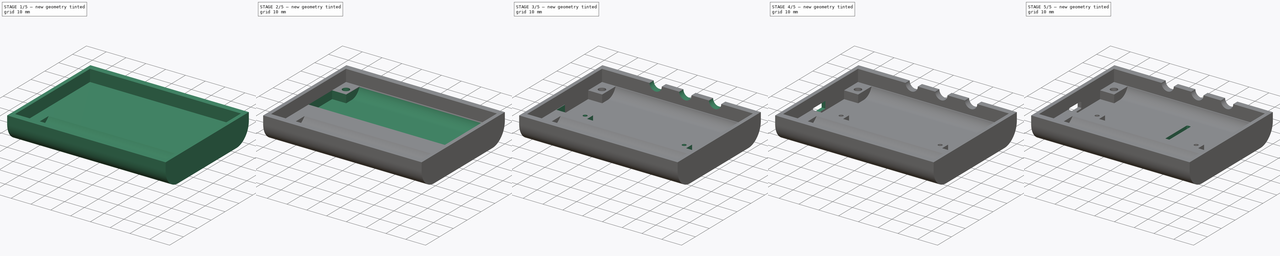
[diagram: build sequence overview — one tinted view per stage of 5, left to right]
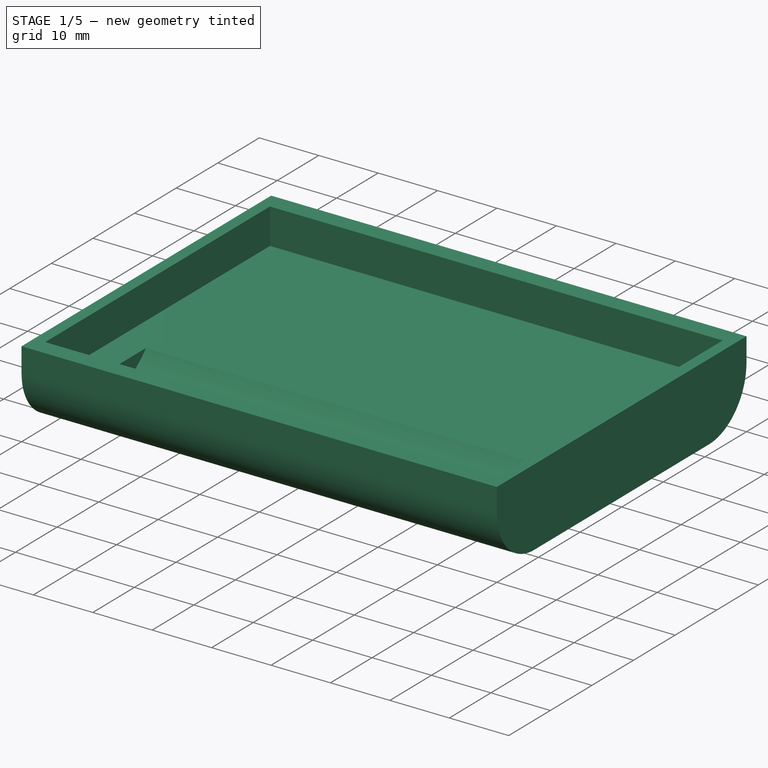
[diagram: stage 1 of 5 — iso view after this stage's code; geometry added in this stage tinted green]
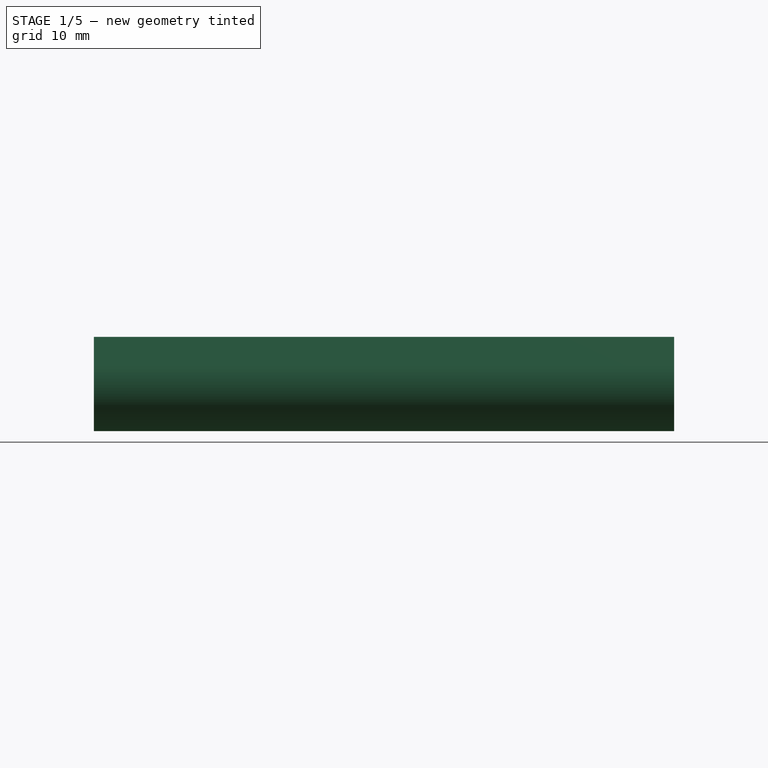
[diagram: stage 1 of 5 — front view after this stage's code; geometry added in this stage tinted green]
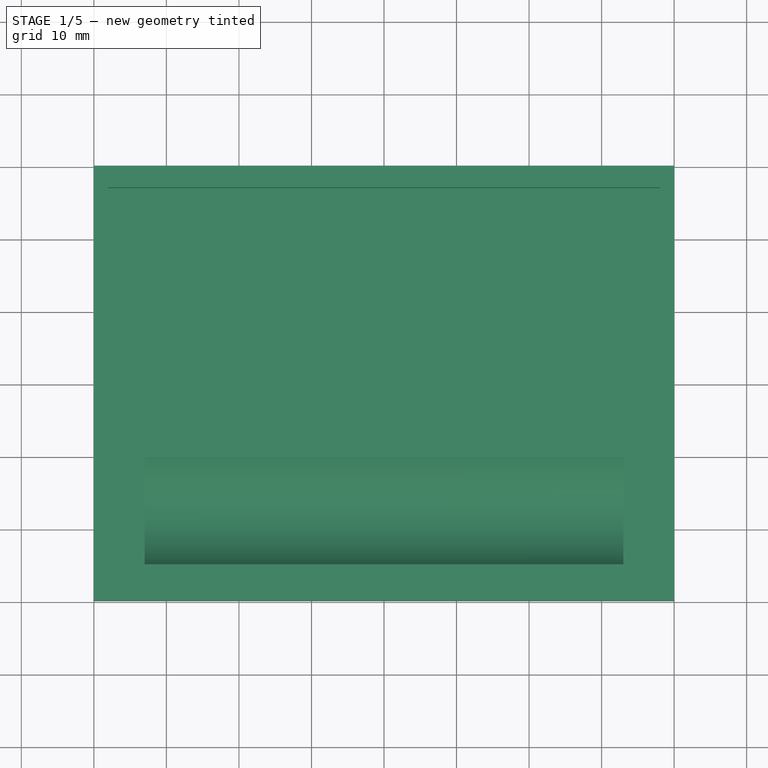
[diagram: stage 1 of 5 — top view after this stage's code; geometry added in this stage tinted green]
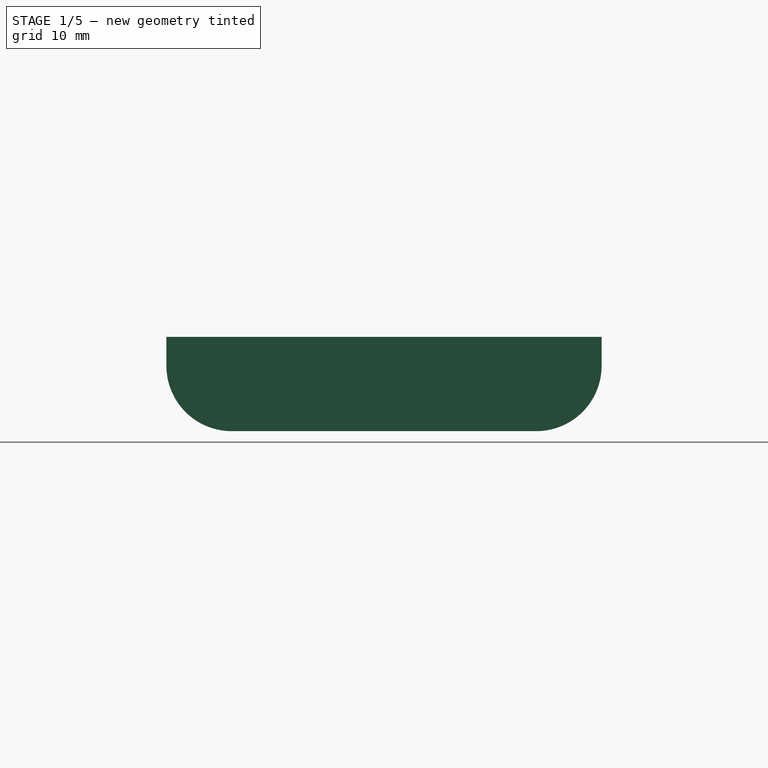
[diagram: stage 1 of 5 — right view after this stage's code; geometry added in this stage tinted green]
FCSTD DOCUMENT  (FreeCAD 0.20R29603 (Git))
Label: OBUDOWA_DOLLL
License: All rights reserved
LicenseURL: http://en.wikipedia.org/wiki/All_rights_reserved
objects: Sketcher::SketchObject×14, PartDesign::Pocket×12, PartDesign::Fillet×2, PartDesign::Pad×1, PartDesign::Body×1
note: 45 computed .brp shape members not serialized (recipe doc carries the construction recipe); baked Part::Feature solids carry a one-line shape summary decoded from their .brp

FEATURE [Sketcher::SketchObject] Sketch
  FullyConstrained = true
  MapMode = 5
  Placement = pos=(0,0,0) rot=(0.57735,0.57735,0.57735;2.0944rad)
  Support = -> [YZ_Plane]
  sketch-geometry (6):
    g0: LineSegment StartX=1.07e-14 StartY=0 StartZ=0 EndX=60 EndY=0 EndZ=0
    g1: LineSegment StartX=60 StartY=0 StartZ=0 EndX=60 EndY=-4 EndZ=0
    g2: LineSegment StartX=51 StartY=-13 StartZ=0 EndX=9 EndY=-13 EndZ=0
    g3: LineSegment StartX=1.07e-14 StartY=-4 StartZ=0 EndX=1.07e-14 EndY=0 EndZ=0
    g4: ArcOfCircle CenterX=51 CenterY=-4 CenterZ=0 NormalX=0 NormalY=0 NormalZ=1 AngleXU=0 Radius=9 StartAngle=4.71239 EndAngle=6.28319
    g5: ArcOfCircle CenterX=9 CenterY=-4 CenterZ=0 NormalX=0 NormalY=0 NormalZ=1 AngleXU=0 Radius=9 StartAngle=3.14159 EndAngle=4.71239
  constraints (15):
    c: Coincident(g0,g1)
    c: Coincident(g3,g0)
    c: Horizontal(g0)
    c: Horizontal(g2)
    c: Vertical(g1)
    c: Vertical(g3)
    c: Coincident(g0,g-1)
    c: DistanceX(g0,g0) = 60
    c: Tangent(g1,g4) = 1.5708
    c: Tangent(g2,g4) = 1.5708
    c: Tangent(g2,g5) = 1.5708
    c: Tangent(g3,g5) = 1.5708
    c: DistanceY(g3,g3) = 4
    c: DistanceY(g1,g1) = 4
    c: Radius(g4) = 9
FEATURE [PartDesign::Pad] Pad
  Direction = (1,-2e-16,3e-16)
  Length = 80
  Length2 = 10
  Placement = pos=(0,0,0) rot=(0.57735,0.57735,0.57735;2.0944rad)
  Profile = -> Sketch
  ReferenceAxis = -> Sketch [N_Axis]
  Type = 0
FEATURE [Sketcher::SketchObject] Sketch001
  FullyConstrained = true
  MapMode = 5
  Placement = pos=(80,-1.76e-14,1.76e-14) rot=(0.57735,0.57735,0.57735;2.0944rad)
  Support = -> [Pad]
  sketch-geometry (1):
    g0: Circle CenterX=12.5 CenterY=0 CenterZ=0 NormalX=0 NormalY=0 NormalZ=1 AngleXU=0 Radius=9.5
  constraints (3):
    c: PointOnObject(g0,g-1)
    c: Diameter(g0) = 19
    c: DistanceX(g-1,g0) = 12.5
FEATURE [PartDesign::Pocket] Pocket
  BaseFeature = -> Pad
  Direction = (-1,4e-16,-4e-16)
  Length = 73
  Length2 = -7
  Placement = pos=(0,0,0) rot=(0.57735,0.57735,0.57735;2.0944rad)
  Profile = -> Sketch001
  ReferenceAxis = -> Sketch001 [N_Axis]
  Type = 4
FEATURE [Sketcher::SketchObject] Sketch002
  ExternalGeometry = -> [Pocket]
  FullyConstrained = true
  MapMode = 5
  Placement = pos=(0,0,0) rot=(0,0,-1;1.5708rad)
  Support = -> [Pocket]
  sketch-geometry (4):
    g0: LineSegment StartX=-3 StartY=78.1 StartZ=0 EndX=-57 EndY=78.1 EndZ=0
    g1: LineSegment StartX=-57 StartY=78.1 StartZ=0 EndX=-57 EndY=1.9 EndZ=0
    g2: LineSegment StartX=-57 StartY=1.9 StartZ=0 EndX=-3 EndY=1.9 EndZ=0
    g3: LineSegment StartX=-3 StartY=1.9 StartZ=0 EndX=-3 EndY=78.1 EndZ=0
  constraints (12):
    c: Coincident(g0,g1)
    c: Coincident(g1,g2)
    c: Coincident(g2,g3)
    c: Coincident(g3,g0)
    c: Horizontal(g0)
    c: Horizontal(g2)
    c: Vertical(g1)
    c: Vertical(g3)
    c: DistanceX(g-4,g0) = 3
    c: DistanceY(g0,g-4) = 1.9
    c: DistanceY(g-5,g2) = 1.9
    c: DistanceX(g2,g-5) = 3
FEATURE [PartDesign::Pocket] Pocket001
  BaseFeature = -> Pocket
  Direction = (7e-16,-7e-16,-1)
  Length = 6
  Length2 = 5
  Placement = pos=(0,0,0) rot=(0.57735,0.57735,0.57735;2.0944rad)
  Profile = -> Sketch002
  ReferenceAxis = -> Sketch002 [N_Axis]
  Type = 0
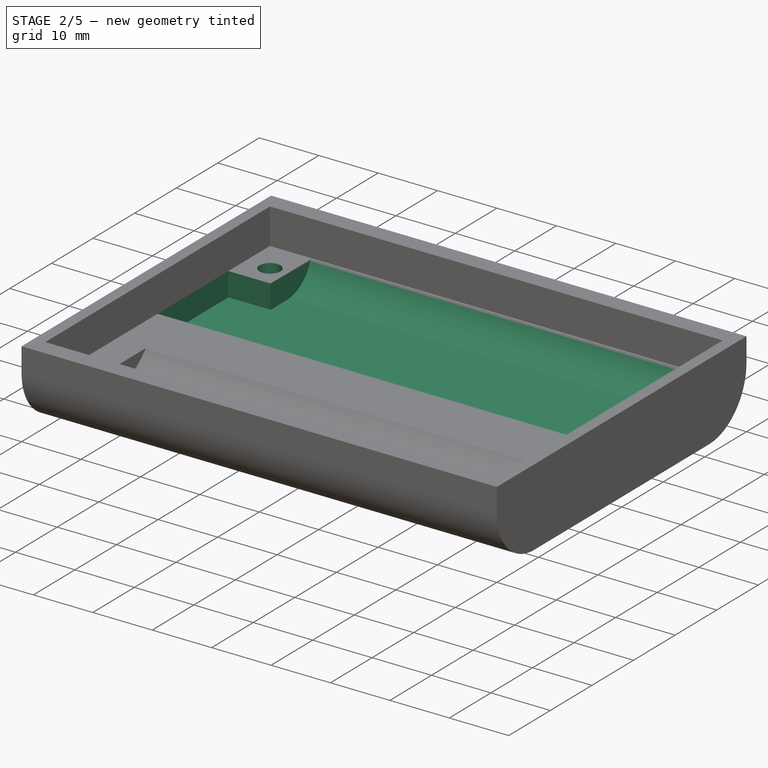
[diagram: stage 2 of 5 — iso view after this stage's code; geometry added in this stage tinted green]
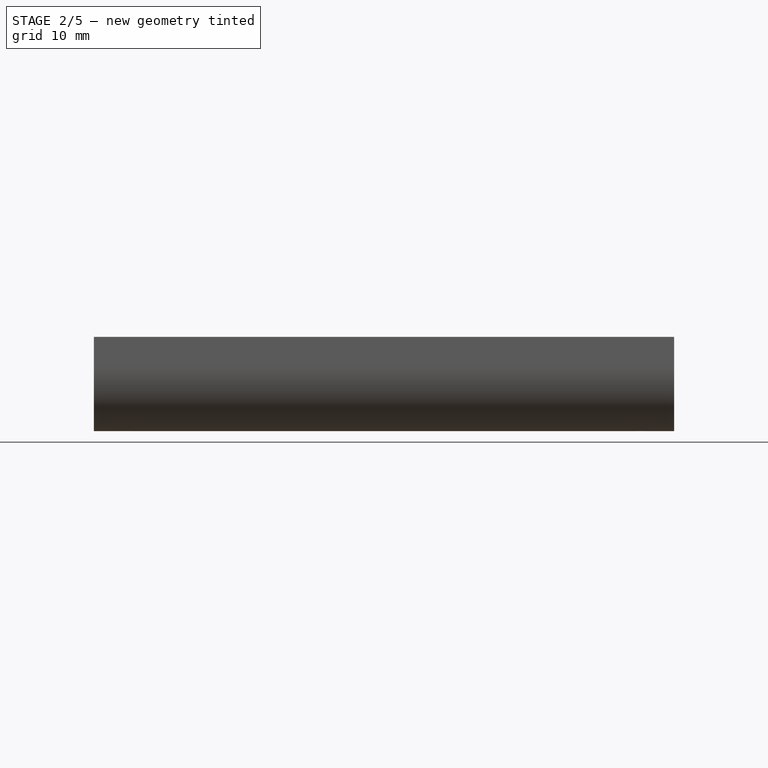
[diagram: stage 2 of 5 — front view after this stage's code; geometry added in this stage tinted green]
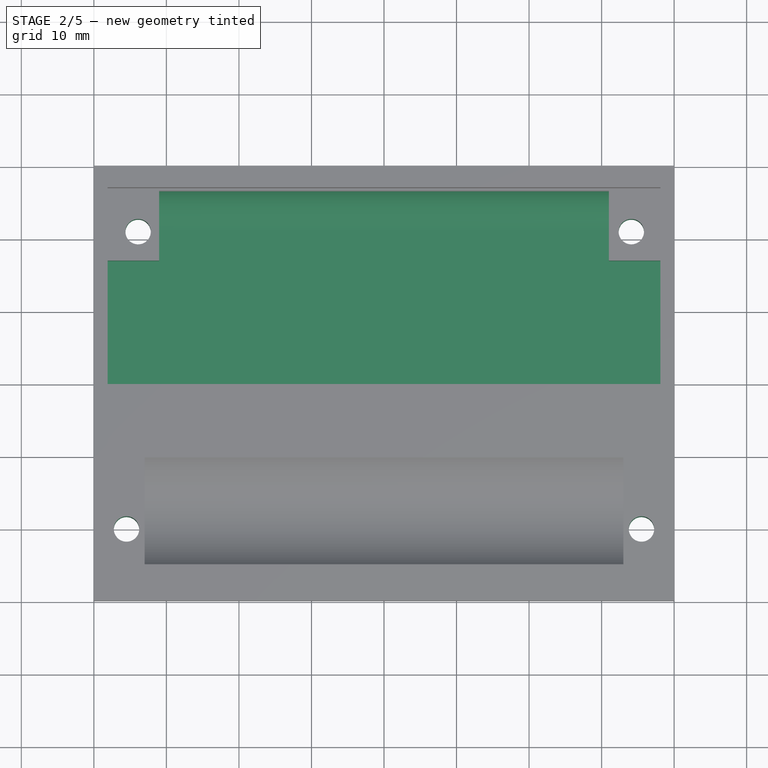
[diagram: stage 2 of 5 — top view after this stage's code; geometry added in this stage tinted green]
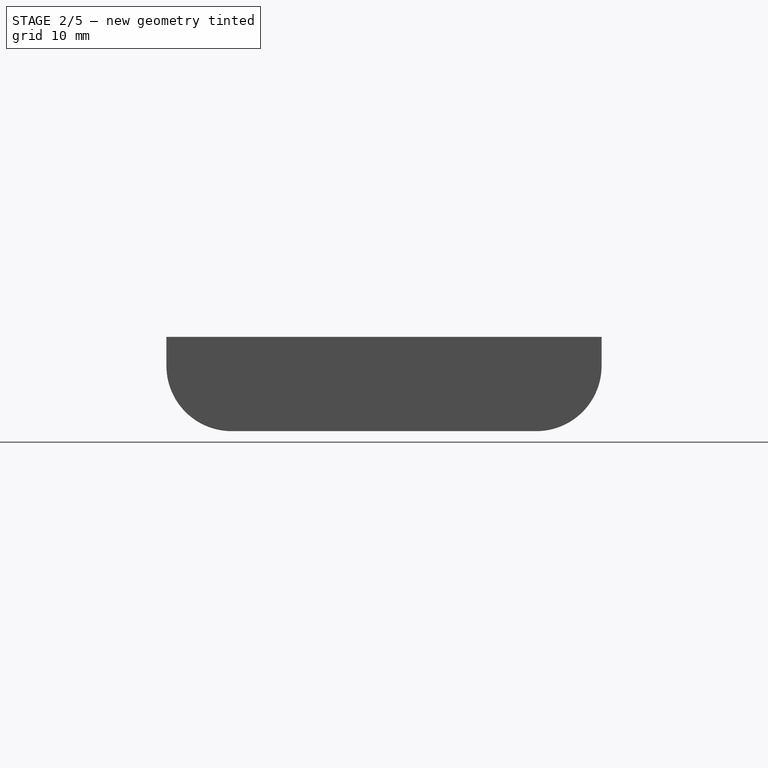
[diagram: stage 2 of 5 — right view after this stage's code; geometry added in this stage tinted green]
FEATURE [Sketcher::SketchObject] Sketch003
  ExternalGeometry = -> [Pocket001]
  FullyConstrained = true
  MapMode = 5
  Placement = pos=(80,-1.76e-14,1.76e-14) rot=(0.57735,0.57735,0.57735;2.0944rad)
  Support = -> [Pocket001]
  sketch-geometry (5):
    g0: LineSegment StartX=57 StartY=4.4e-15 StartZ=0 EndX=32 EndY=4.4e-15 EndZ=0
    g1: LineSegment StartX=32 StartY=4.4e-15 StartZ=0 EndX=32 EndY=-10 EndZ=0
    g2: LineSegment StartX=32 StartY=-10 StartZ=0 EndX=51 EndY=-10 EndZ=0
    g3: LineSegment StartX=57 StartY=-4 StartZ=0 EndX=57 EndY=4.4e-15 EndZ=0
    g4: ArcOfCircle CenterX=51 CenterY=-4 CenterZ=0 NormalX=0 NormalY=0 NormalZ=1 AngleXU=0 Radius=6 StartAngle=4.71239 EndAngle=6.28319
  constraints (14):
    c: Coincident(g0,g1)
    c: Coincident(g1,g2)
    c: Coincident(g3,g0)
    c: Horizontal(g0)
    c: Horizontal(g2)
    c: Vertical(g1)
    c: Vertical(g3)
    c: PointOnObject(g0,g-4)
    c: DistanceX(g0,g-4) = 3
    c: DistanceY(g-5,g1) = 3
    c: Tangent(g3,g4) = -1.5708
    c: Tangent(g2,g4) = -1.5708
    c: Radius(g4) = 6
    c: DistanceX(g0,g0) = 25
FEATURE [PartDesign::Pocket] Pocket002
  BaseFeature = -> Pocket001
  Direction = (-1,8e-16,-6e-16)
  Length = 71
  Length2 = -9
  Placement = pos=(0,0,0) rot=(0.57735,0.57735,0.57735;2.0944rad)
  Profile = -> Sketch003
  ReferenceAxis = -> Sketch003 [N_Axis]
  Type = 4
FEATURE [Sketcher::SketchObject] Sketch005
  ExternalGeometry = -> [Pocket002]
  FullyConstrained = true
  MapMode = 5
  Placement = pos=(80,-1.76e-14,1.76e-14) rot=(0.57735,0.57735,0.57735;2.0944rad)
  Support = -> [Pocket002]
  sketch-geometry (4):
    g0: LineSegment StartX=47 StartY=-4 StartZ=0 EndX=30 EndY=-4 EndZ=0
    g1: LineSegment StartX=30 StartY=-4 StartZ=0 EndX=30 EndY=-10 EndZ=0
    g2: LineSegment StartX=30 StartY=-10 StartZ=0 EndX=47 EndY=-10 EndZ=0
    g3: LineSegment StartX=47 StartY=-10 StartZ=0 EndX=47 EndY=-4 EndZ=0
  constraints (12):
    c: Coincident(g0,g1)
    c: Coincident(g1,g2)
    c: Coincident(g2,g3)
    c: Coincident(g3,g0)
    c: Horizontal(g0)
    c: Horizontal(g2)
    c: Vertical(g1)
    c: Vertical(g3)
    c: DistanceY(g-4,g1) = 3
    c: DistanceX(g0,g-3) = 13
    c: DistanceX(g0,g0) = 17
    c: DistanceY(g3,g3) = 6
FEATURE [PartDesign::Pocket] Pocket003
  BaseFeature = -> Pocket002
  Direction = (-1,1.1e-15,-7e-16)
  Length = 78.1
  Length2 = -1.9
  Placement = pos=(0,0,0) rot=(0.57735,0.57735,0.57735;2.0944rad)
  Profile = -> Sketch005
  ReferenceAxis = -> Sketch005 [N_Axis]
  Type = 4
FEATURE [Sketcher::SketchObject] Sketch006
  ExternalGeometry = -> [Pocket003]
  FullyConstrained = true
  MapMode = 5
  Placement = pos=(4.3e-15,-4e-15,-6) rot=(0,0,-1;1.5708rad)
  Support = -> [Pocket003]
  sketch-geometry (4):
    g0: Circle CenterX=-51 CenterY=74.1 CenterZ=0 NormalX=0 NormalY=0 NormalZ=1 AngleXU=0 Radius=1.75
    g1: Circle CenterX=-51 CenterY=6.1 CenterZ=0 NormalX=0 NormalY=0 NormalZ=1 AngleXU=0 Radius=1.75
    g2: Circle CenterX=-10 CenterY=4.5 CenterZ=0 NormalX=0 NormalY=0 NormalZ=1 AngleXU=0 Radius=1.75
    g3: Circle CenterX=-10 CenterY=75.5 CenterZ=0 NormalX=0 NormalY=0 NormalZ=1 AngleXU=0 Radius=1.75
  constraints (12):
    c: Diameter(g0) = 3.5
    c: Diameter(g3) = 3.5
    c: Diameter(g2) = 3.5
    c: Diameter(g1) = 3.5
    c: DistanceX(g-4,g0) = 9
    c: DistanceY(g0,g-4) = 5.9
    c: DistanceY(g1,g0) = 68
    c: DistanceX(g-4,g1) = 9
    c: DistanceX(g2,g-1) = 10
    c: DistanceX(g3,g-3) = 10
    c: DistanceY(g3,g-3) = 4.5
    c: DistanceY(g-1,g2) = 4.5
FEATURE [PartDesign::Pocket] Pocket004  label="otwory_srobki"
  BaseFeature = -> Pocket003
  Direction = (1.7e-15,-1e-15,-1)
  Length = 5
  Length2 = 5
  Placement = pos=(0,0,0) rot=(0.57735,0.57735,0.57735;2.0944rad)
  Profile = -> Sketch006
  ReferenceAxis = -> Sketch006 [N_Axis]
  Type = 1
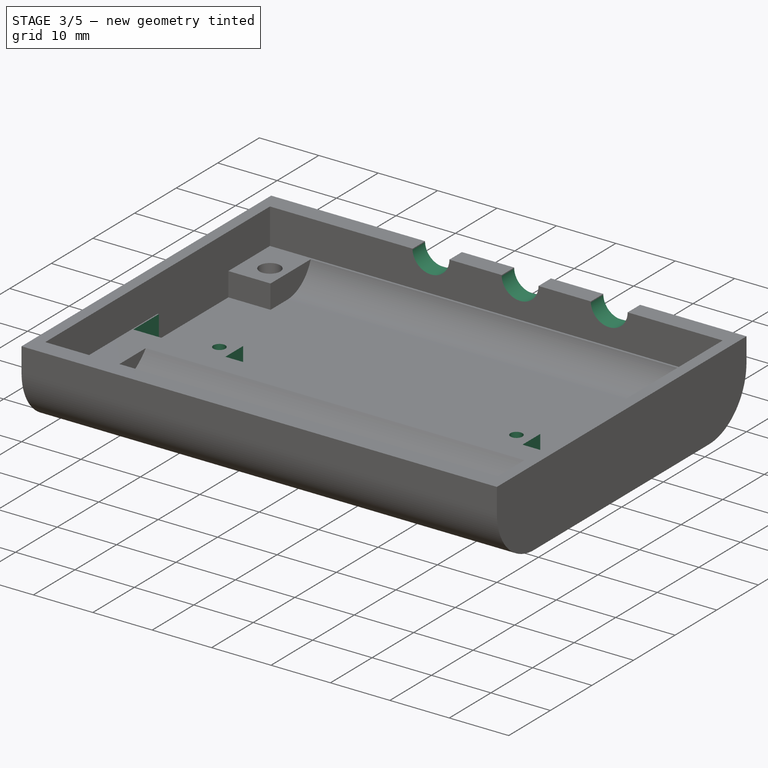
[diagram: stage 3 of 5 — iso view after this stage's code; geometry added in this stage tinted green]
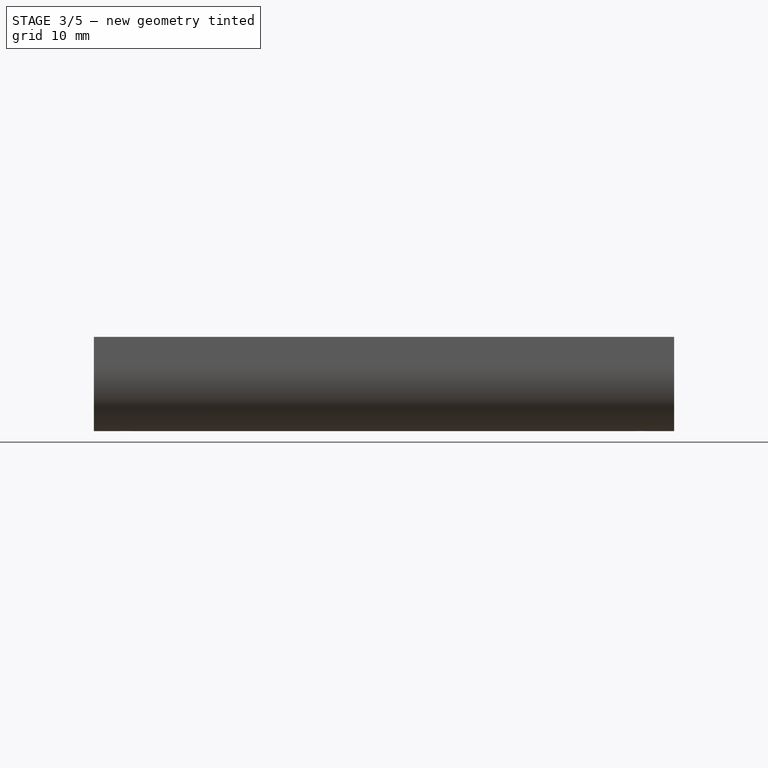
[diagram: stage 3 of 5 — front view after this stage's code; geometry added in this stage tinted green]
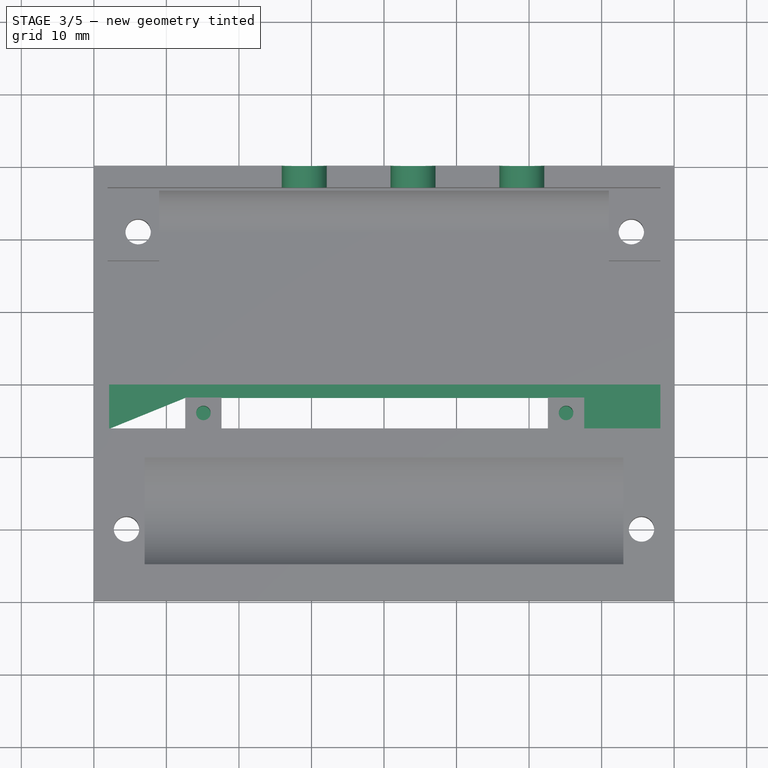
[diagram: stage 3 of 5 — top view after this stage's code; geometry added in this stage tinted green]
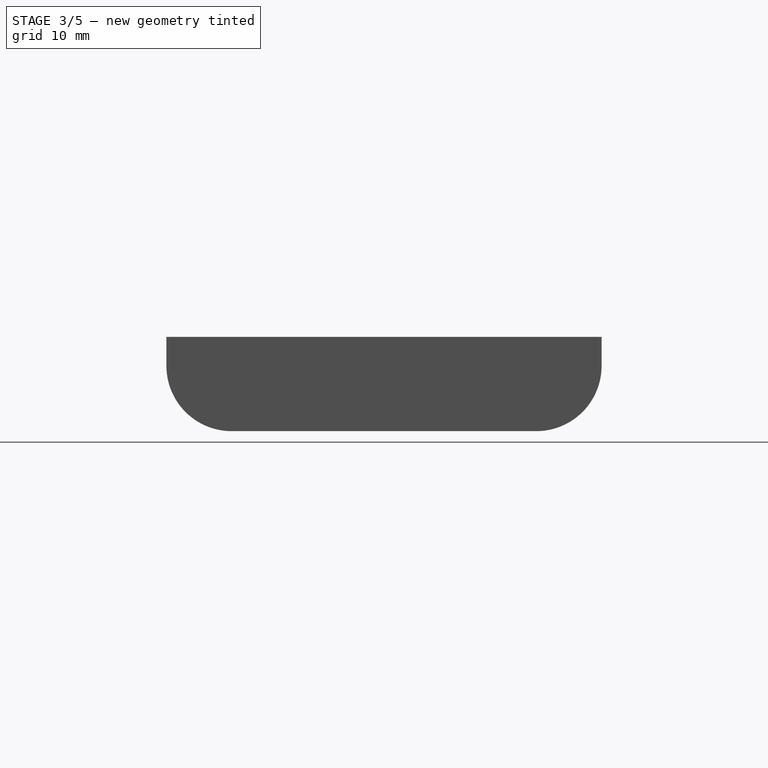
[diagram: stage 3 of 5 — right view after this stage's code; geometry added in this stage tinted green]
FEATURE [Sketcher::SketchObject] Sketch007
  ExternalGeometry = -> [Pocket004]
  FullyConstrained = true
  MapMode = 5
  Placement = pos=(2.64e-14,60,-1.32e-14) rot=(0.57735,0.57735,0.57735;4.18879rad)
  Support = -> [Pocket004]
  sketch-geometry (3):
    g0: Circle CenterX=0 CenterY=59 CenterZ=0 NormalX=0 NormalY=0 NormalZ=1 AngleXU=0 Radius=3.1
    g1: Circle CenterX=0 CenterY=44 CenterZ=0 NormalX=0 NormalY=0 NormalZ=1 AngleXU=0 Radius=3.1
    g2: Circle CenterX=0 CenterY=29 CenterZ=0 NormalX=0 NormalY=0 NormalZ=1 AngleXU=0 Radius=3.1
  constraints (9):
    c: PointOnObject(g0,g-2)
    c: PointOnObject(g1,g-2)
    c: PointOnObject(g2,g-2)
    c: DistanceY(g0,g-3) = 21
    c: DistanceY(g1,g0) = 15
    c: DistanceY(g2,g1) = 15
    c: Diameter(g0) = 6.2
    c: Diameter(g1) = 6.2
    c: Diameter(g2) = 6.2
FEATURE [PartDesign::Pocket] Pocket005
  BaseFeature = -> Pocket004
  Direction = (-4e-16,-1,1.9e-15)
  Length = 5
  Length2 = 5
  Placement = pos=(0,0,0) rot=(0.57735,0.57735,0.57735;2.0944rad)
  Profile = -> Sketch007
  ReferenceAxis = -> Sketch007 [N_Axis]
  Type = 0
FEATURE [Sketcher::SketchObject] Sketch008
  ExternalGeometry = -> [Pocket005]
  FullyConstrained = false
  MapMode = 5
  Placement = pos=(4.3e-15,-4e-15,-6) rot=(0,0,-1;1.5708rad)
  Support = -> [Pocket005]
  sketch-geometry (1):
    g0: LineSegment StartX=-30 StartY=1.9 StartZ=0 EndX=-25 EndY=1.9 EndZ=0
  constraints (1):
    c: Horizontal(g0)
FEATURE [Sketcher::SketchObject] Sketch009
  FullyConstrained = false
  MapMode = 5
  Placement = pos=(2e-15,-5e-15,-6) rot=(0,0,-1;1.5708rad)
  sketch-geometry (2):
    g0: Circle CenterX=-26 CenterY=65.1 CenterZ=0 NormalX=0 NormalY=0 NormalZ=1 AngleXU=0 Radius=1
    g1: Circle CenterX=-26 CenterY=15.1 CenterZ=0 NormalX=0 NormalY=0 NormalZ=1 AngleXU=0 Radius=1
  constraints (3):
    c: DistanceY(g1,g0) = 50
    c: Diameter(g0) = 2
    c: Diameter(g1) = 2
FEATURE [PartDesign::Pocket] Pocket007
  BaseFeature = -> Pocket005
  Direction = (0,-1e-15,-1)
  Length = 5
  Length2 = 5
  Placement = pos=(0,0,0) rot=(0.57735,0.57735,0.57735;2.0944rad)
  Profile = -> Sketch009
  ReferenceAxis = -> Sketch009 [N_Axis]
  Type = 0
FEATURE [Sketcher::SketchObject] Sketch010
  ExternalGeometry = -> [Pocket007]
  FullyConstrained = true
  MapMode = 5
  Placement = pos=(4.3e-15,-4e-15,-6) rot=(0,0,-1;1.5708rad)
  Support = -> [Pocket007]
  sketch-geometry (15):
    g0: LineSegment StartX=-30 StartY=78.1 StartZ=0 EndX=-23.8655 EndY=78.1 EndZ=0
    g1: LineSegment StartX=-23.8655 StartY=78.1 StartZ=0 EndX=-23.8655 EndY=2.1 EndZ=0
    g2: LineSegment StartX=-23.8655 StartY=2.1 StartZ=0 EndX=-30 EndY=2.1 EndZ=0
    g3: LineSegment StartX=-30 StartY=2.1 StartZ=0 EndX=-30 EndY=78.1 EndZ=0
    g4: GeomPoint X=-26 Y=15.1 Z=0
    g5: LineSegment StartX=-28.1345 StartY=67.6 StartZ=0 EndX=-28.1345 EndY=62.6 EndZ=0
    g6: LineSegment StartX=-28.1345 StartY=62.6 StartZ=0 EndX=-23.8655 EndY=62.6 EndZ=0
    g7: LineSegment StartX=-23.8655 StartY=62.6 StartZ=0 EndX=-23.8655 EndY=67.6 EndZ=0
    g8: LineSegment StartX=-23.8655 StartY=67.6 StartZ=0 EndX=-28.1345 EndY=67.6 EndZ=0
    g9: GeomPoint X=-26 Y=65.1 Z=0
    g10: LineSegment StartX=-28.1345 StartY=17.6 StartZ=0 EndX=-28.1345 EndY=12.6 EndZ=0
    g11: LineSegment StartX=-28.1345 StartY=12.6 StartZ=0 EndX=-23.8655 EndY=12.6 EndZ=0
    g12: LineSegment StartX=-23.8655 StartY=12.6 StartZ=0 EndX=-23.8655 EndY=17.6 EndZ=0
    g13: LineSegment StartX=-23.8655 StartY=17.6 StartZ=0 EndX=-28.1345 EndY=17.6 EndZ=0
    g14: GeomPoint X=-26 Y=15.1 Z=0
  constraints (37):
    c: Coincident(g0,g1)
    c: Coincident(g1,g2)
    c: Coincident(g2,g3)
    c: Coincident(g3,g0)
    c: Horizontal(g0)
    c: Horizontal(g2)
    c: Vertical(g1)
    c: Vertical(g3)
    c: Coincident(g0,g-6)
    c: DistanceX(g0,g-5) = 4
    c: DistanceY(g3,g3) = 76
    c: DistanceX(g4,g-3) = 0
    c: DistanceY(g4,g-3) = 0
    c: Coincident(g5,g6)
    c: Coincident(g6,g7)
    c: Coincident(g7,g8)
    c: Coincident(g8,g5)
    c: Horizontal(g6)
    c: Horizontal(g8)
    c: Vertical(g5)
    c: Vertical(g7)
    c: Symmetric(g6,g5,g9)
    c: Coincident(g9,g-4)
    c: PointOnObject(g6,g1)
    c: DistanceY(g5,g5) = 5
    c: Coincident(g10,g11)
    c: Coincident(g11,g12)
    c: Coincident(g12,g13)
    c: Coincident(g13,g10)
    c: Horizontal(g11)
    c: Horizontal(g13)
    c: Vertical(g10)
    c: Vertical(g12)
    c: Symmetric(g11,g10,g14)
    c: Coincident(g14,g4)
    c: PointOnObject(g11,g1)
    c: DistanceY(g10,g10) = 5
FEATURE [PartDesign::Pocket] Pocket008
  BaseFeature = -> Pocket007
  Direction = (2.7e-15,-1.3e-15,-1)
  Length = 4
  Length2 = 5
  Placement = pos=(0,0,0) rot=(0.57735,0.57735,0.57735;2.0944rad)
  Profile = -> Sketch010
  ReferenceAxis = -> Sketch010 [N_Axis]
  Type = 0
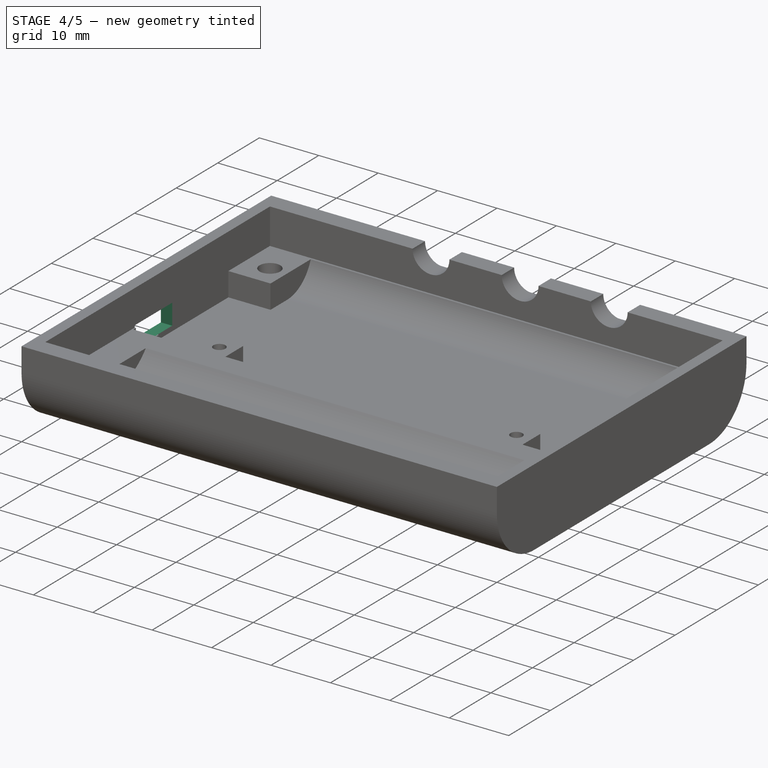
[diagram: stage 4 of 5 — iso view after this stage's code; geometry added in this stage tinted green]
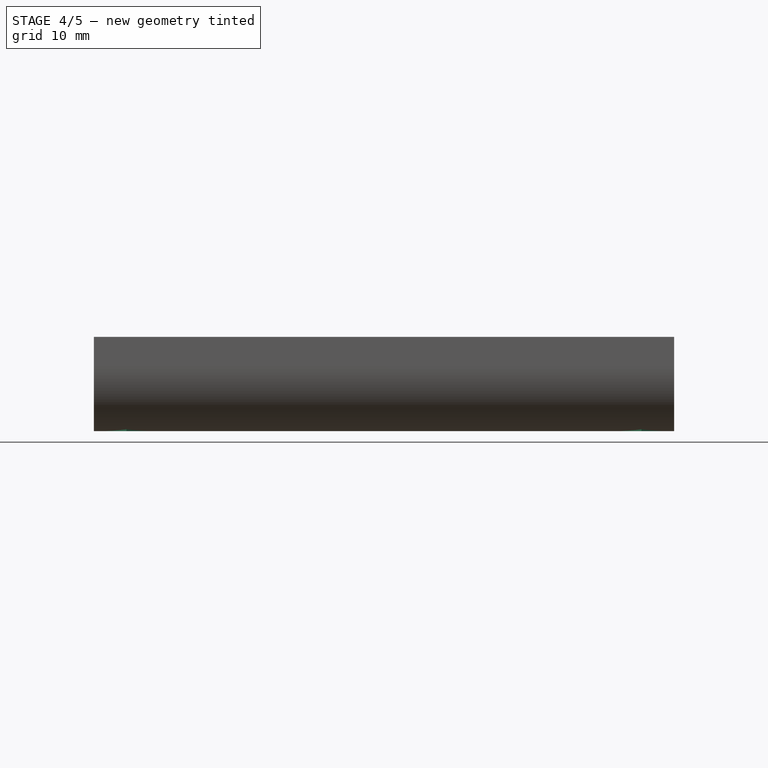
[diagram: stage 4 of 5 — front view after this stage's code; geometry added in this stage tinted green]
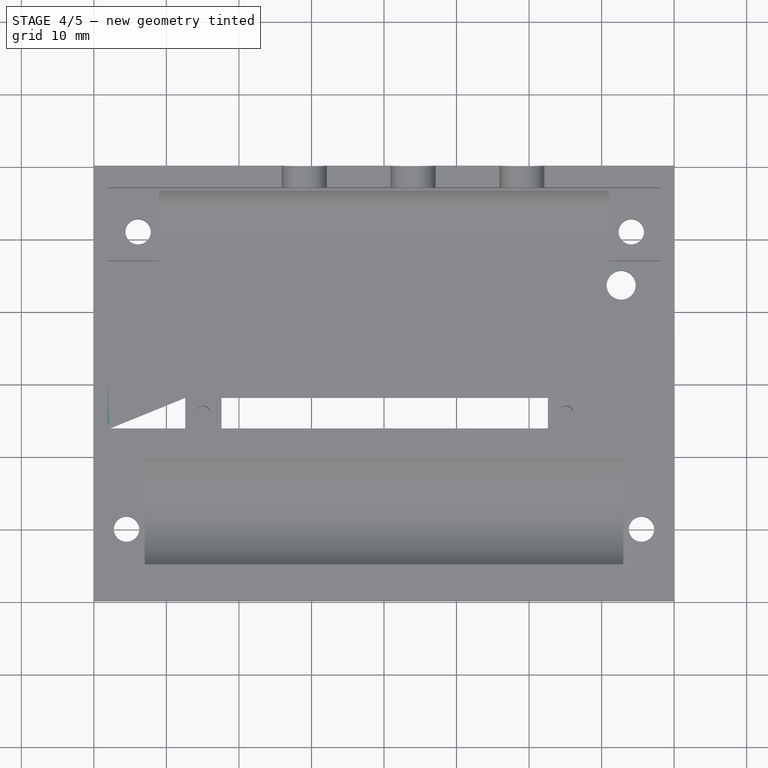
[diagram: stage 4 of 5 — top view after this stage's code; geometry added in this stage tinted green]
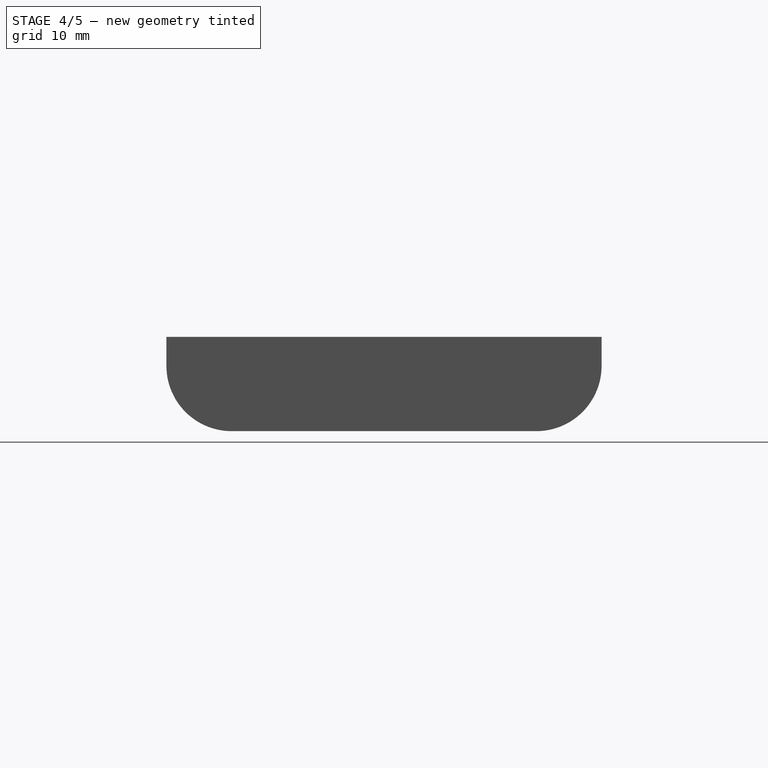
[diagram: stage 4 of 5 — right view after this stage's code; geometry added in this stage tinted green]
FEATURE [Sketcher::SketchObject] Sketch011
  ExternalGeometry = -> [Pocket008]
  FullyConstrained = true
  MapMode = 5
  Placement = pos=(3.6e-15,-5.7e-15,-13) rot=(0.707107,0.707107,0;3.14159rad)
  Support = -> [Pocket008]
  sketch-geometry (28):
    g0: LineSegment StartX=47.8246 StartY=74.1 StartZ=0 EndX=49.4123 EndY=71.35 EndZ=0
    g1: LineSegment StartX=49.4123 StartY=71.35 StartZ=0 EndX=52.5877 EndY=71.35 EndZ=0
    g2: LineSegment StartX=52.5877 StartY=71.35 StartZ=0 EndX=54.1754 EndY=74.1 EndZ=0
    g3: LineSegment StartX=54.1754 StartY=74.1 StartZ=0 EndX=52.5877 EndY=76.85 EndZ=0
    g4: LineSegment StartX=52.5877 StartY=76.85 StartZ=0 EndX=49.4123 EndY=76.85 EndZ=0
    g5: LineSegment StartX=49.4123 StartY=76.85 StartZ=0 EndX=47.8246 EndY=74.1 EndZ=0
    g6: Circle CenterX=51 CenterY=74.1 CenterZ=0 NormalX=0 NormalY=0 NormalZ=1 AngleXU=0 Radius=3.17543
    g7: LineSegment StartX=49.4123 StartY=8.85 StartZ=0 EndX=47.8246 EndY=6.1 EndZ=0
    g8: LineSegment StartX=47.8246 StartY=6.1 StartZ=0 EndX=49.4123 EndY=3.35 EndZ=0
    g9: LineSegment StartX=49.4123 StartY=3.35 StartZ=0 EndX=52.5877 EndY=3.35 EndZ=0
    g10: LineSegment StartX=52.5877 StartY=3.35 StartZ=0 EndX=54.1754 EndY=6.1 EndZ=0
    g11: LineSegment StartX=54.1754 StartY=6.1 StartZ=0 EndX=52.5877 EndY=8.85 EndZ=0
    g12: LineSegment StartX=52.5877 StartY=8.85 StartZ=0 EndX=49.4123 EndY=8.85 EndZ=0
    g13: Circle CenterX=51 CenterY=6.1 CenterZ=0 NormalX=0 NormalY=0 NormalZ=1 AngleXU=0 Radius=3.17543
    g14: LineSegment StartX=11.5877 StartY=7.25 StartZ=0 EndX=8.41229 EndY=7.25 EndZ=0
    g15: LineSegment StartX=8.41229 StartY=7.25 StartZ=0 EndX=6.82457 EndY=4.5 EndZ=0
    g16: LineSegment StartX=6.82457 StartY=4.5 StartZ=0 EndX=8.41229 EndY=1.75 EndZ=0
    g17: LineSegment StartX=8.41229 StartY=1.75 StartZ=0 EndX=11.5877 EndY=1.75 EndZ=0
    g18: LineSegment StartX=11.5877 StartY=1.75 StartZ=0 EndX=13.1754 EndY=4.5 EndZ=0
    g19: LineSegment StartX=13.1754 StartY=4.5 StartZ=0 EndX=11.5877 EndY=7.25 EndZ=0
    g20: Circle CenterX=10 CenterY=4.5 CenterZ=0 NormalX=0 NormalY=0 NormalZ=1 AngleXU=0 Radius=3.17543
    g21: LineSegment StartX=11.5877 StartY=72.75 StartZ=0 EndX=13.1754 EndY=75.5 EndZ=0
    g22: LineSegment StartX=13.1754 StartY=75.5 StartZ=0 EndX=11.5877 EndY=78.25 EndZ=0
    g23: LineSegment StartX=11.5877 StartY=78.25 StartZ=0 EndX=8.41229 EndY=78.25 EndZ=0
    g24: LineSegment StartX=8.41229 StartY=78.25 StartZ=0 EndX=6.82457 EndY=75.5 EndZ=0
    g25: LineSegment StartX=6.82457 StartY=75.5 StartZ=0 EndX=8.41229 EndY=72.75 EndZ=0
    g26: LineSegment StartX=8.41229 StartY=72.75 StartZ=0 EndX=11.5877 EndY=72.75 EndZ=0
    g27: Circle CenterX=10 CenterY=75.5 CenterZ=0 NormalX=0 NormalY=0 NormalZ=1 AngleXU=0 Radius=3.17543
  constraints (64):
    c: Coincident(g0,g1)
    c: Coincident(g1,g2)
    c: Coincident(g2,g3)
    c: Coincident(g3,g4)
    c: Coincident(g4,g5)
    c: Coincident(g5,g0)
    c: Equal(g0, g1-g5) x5
    c: PointOnObject(g0,g6)
    c: PointOnObject(g1,g6)
    c: PointOnObject(g2,g6)
    c: PointOnObject(g3,g6)
    c: PointOnObject(g4,g6)
    c: PointOnObject(g5,g6)
    c: Coincident(g6,g-3)
    c: Coincident(g7,g8)
    c: Coincident(g8,g9)
    c: Coincident(g9,g10)
    c: Coincident(g10,g11)
    c: Coincident(g11,g12)
    c: Coincident(g12,g7)
    c: Equal(g7, g8-g12) x5
    c: PointOnObject(g7,g13)
    c: PointOnObject(g8,g13)
    c: PointOnObject(g9,g13)
    c: PointOnObject(g10,g13)
    c: PointOnObject(g11,g13)
    c: PointOnObject(g12,g13)
    c: Coincident(g13,g-5)
    c: Coincident(g14,g15)
    c: Coincident(g15,g16)
    c: Coincident(g16,g17)
    c: Coincident(g17,g18)
    c: Coincident(g18,g19)
    c: Coincident(g19,g14)
    c: Equal(g14, g15-g19) x5
    c: PointOnObject(g14,g20)
    c: PointOnObject(g15,g20)
    c: PointOnObject(g16,g20)
    c: PointOnObject(g17,g20)
    c: PointOnObject(g18,g20)
    c: PointOnObject(g19,g20)
    c: Coincident(g20,g-6)
    c: Coincident(g21,g22)
    c: Coincident(g22,g23)
    c: Coincident(g23,g24)
    c: Coincident(g24,g25)
    c: Coincident(g25,g26)
    c: Coincident(g26,g21)
    c: Equal(g21, g22-g26) x5
    c: PointOnObject(g21,g27)
    c: PointOnObject(g22,g27)
    c: PointOnObject(g23,g27)
    c: PointOnObject(g24,g27)
    c: PointOnObject(g25,g27)
    c: PointOnObject(g26,g27)
    c: Coincident(g27,g-4)
    c: Parallel(g-7,g23)
    c: Parallel(g4,g-7)
    c: Parallel(g12,g-7)
    c: Parallel(g14,g-7)
    c: DistanceY(g21,g22) = 5.5
    c: DistanceY(g0,g4) = 5.5
    c: DistanceY(g8,g7) = 5.5
    c: DistanceY(g17,g14) = 5.5
FEATURE [PartDesign::Pocket] Pocket009
  BaseFeature = -> Pocket008
  Direction = (-3.1e-15,1.4e-15,1)
  Length = 3
  Length2 = 5
  Placement = pos=(0,0,0) rot=(0.57735,0.57735,0.57735;2.0944rad)
  Profile = -> Sketch011
  ReferenceAxis = -> Sketch011 [N_Axis]
  Type = 0
FEATURE [Sketcher::SketchObject] Sketch012
  ExternalGeometry = -> [Pocket009,Sketch006]
  FullyConstrained = true
  MapMode = 5
  Placement = pos=(1e-16,0,0) rot=(0.57735,0.57735,-0.57735;4.18879rad)
  Support = -> [Pocket009]
  sketch-geometry (4):
    g0: LineSegment StartX=24.5 StartY=9.16 StartZ=0 EndX=33.5 EndY=9.16 EndZ=0
    g1: LineSegment StartX=33.5 StartY=9.16 StartZ=0 EndX=33.5 EndY=5.66 EndZ=0
    g2: LineSegment StartX=33.5 StartY=5.66 StartZ=0 EndX=24.5 EndY=5.66 EndZ=0
    g3: LineSegment StartX=24.5 StartY=5.66 StartZ=0 EndX=24.5 EndY=9.16 EndZ=0
  constraints (12):
    c: Coincident(g0,g1)
    c: Coincident(g1,g2)
    c: Coincident(g2,g3)
    c: Coincident(g3,g0)
    c: Horizontal(g0)
    c: Horizontal(g2)
    c: Vertical(g1)
    c: Vertical(g3)
    c: DistanceX(g0,g0) = 9
    c: DistanceY(g1,g1) = 3.5
    c: DistanceX(g1,g-3) = 26.5
    c: DistanceY(g-4,g0) = 3.16
FEATURE [PartDesign::Pocket] Pocket010  label="USB"
  BaseFeature = -> Pocket009
  Direction = (1,-2e-16,2e-16)
  Length = 5
  Length2 = 5
  Placement = pos=(0,0,0) rot=(0.57735,0.57735,0.57735;2.0944rad)
  Profile = -> Sketch012
  ReferenceAxis = -> Sketch012 [N_Axis]
  Type = 0
FEATURE [Sketcher::SketchObject] Sketch013
  ExternalGeometry = -> [Pocket010]
  FullyConstrained = true
  MapMode = 5
  Placement = pos=(3.6e-15,-6.4e-15,-13) rot=(0.707107,0.707107,0;3.14159rad)
  Support = -> [Pocket010]
  sketch-geometry (2):
    g0: GeomPoint X=43.7 Y=72.7 Z=0
    g1: Circle CenterX=43.7 CenterY=72.7 CenterZ=0 NormalX=0 NormalY=0 NormalZ=1 AngleXU=0 Radius=2
  constraints (4):
    c: DistanceY(g0,g-3) = 7.3
    c: DistanceX(g0,g-4) = 7.3
    c: Coincident(g1,g0)
    c: Diameter(g1) = 4
FEATURE [PartDesign::Pocket] Pocket011
  BaseFeature = -> Pocket010
  Direction = (-3e-16,5e-16,1)
  Length = 5
  Length2 = 5
  Placement = pos=(0,0,0) rot=(0.57735,0.57735,0.57735;2.0944rad)
  Profile = -> Sketch013
  ReferenceAxis = -> Sketch013 [N_Axis]
  Type = 1
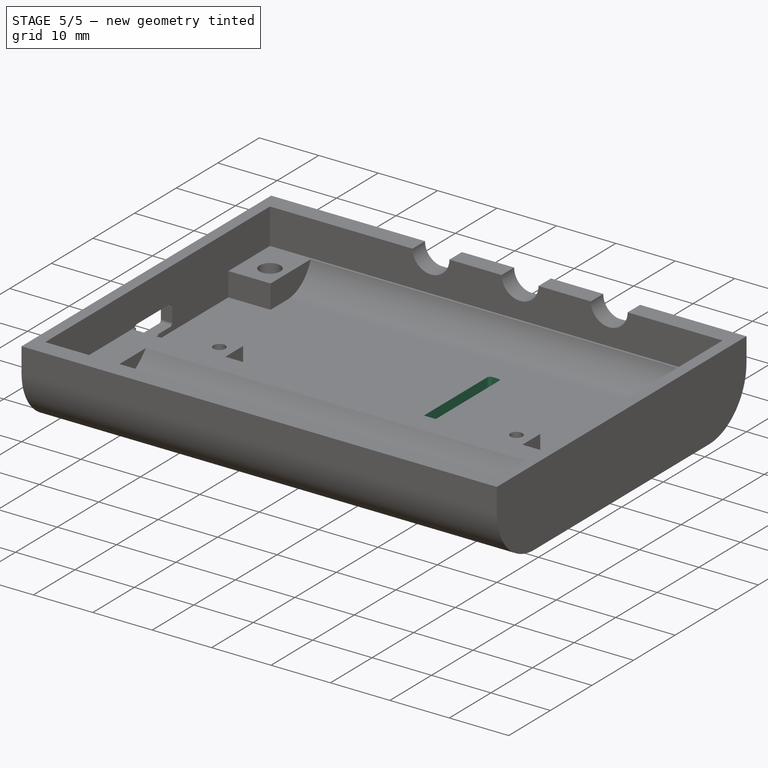
[diagram: stage 5 of 5 — iso view after this stage's code; geometry added in this stage tinted green]
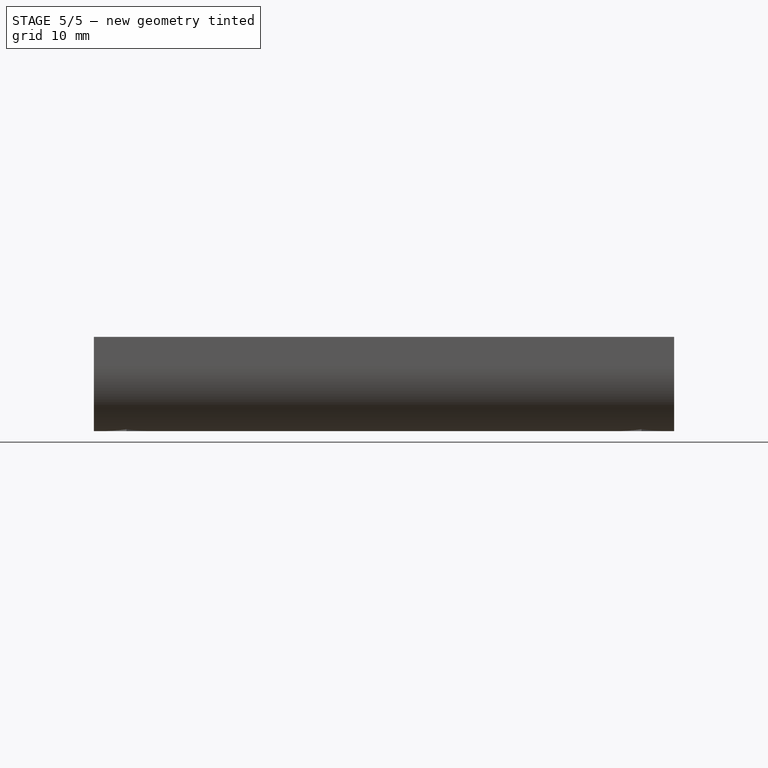
[diagram: stage 5 of 5 — front view after this stage's code; geometry added in this stage tinted green]
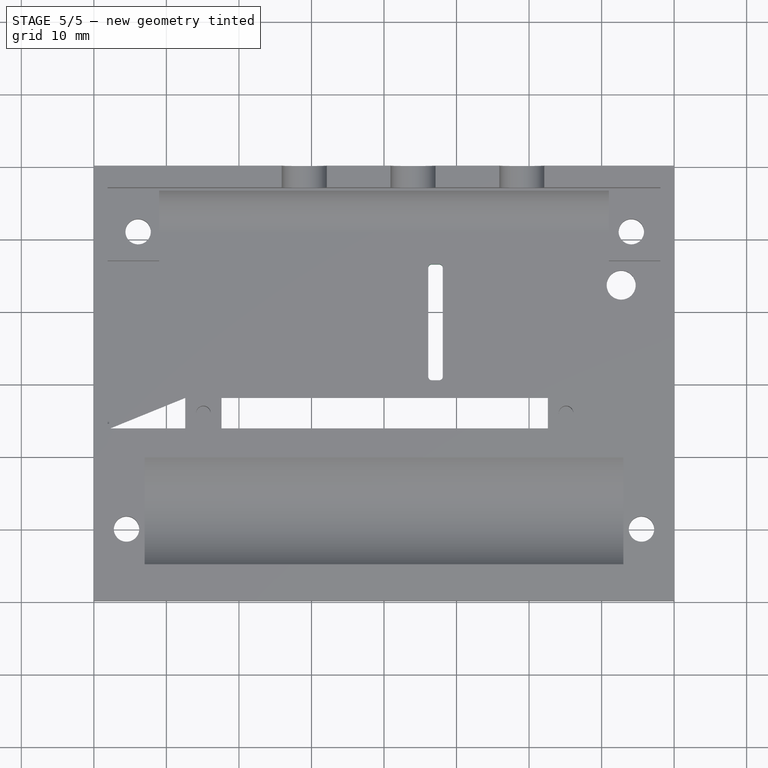
[diagram: stage 5 of 5 — top view after this stage's code; geometry added in this stage tinted green]
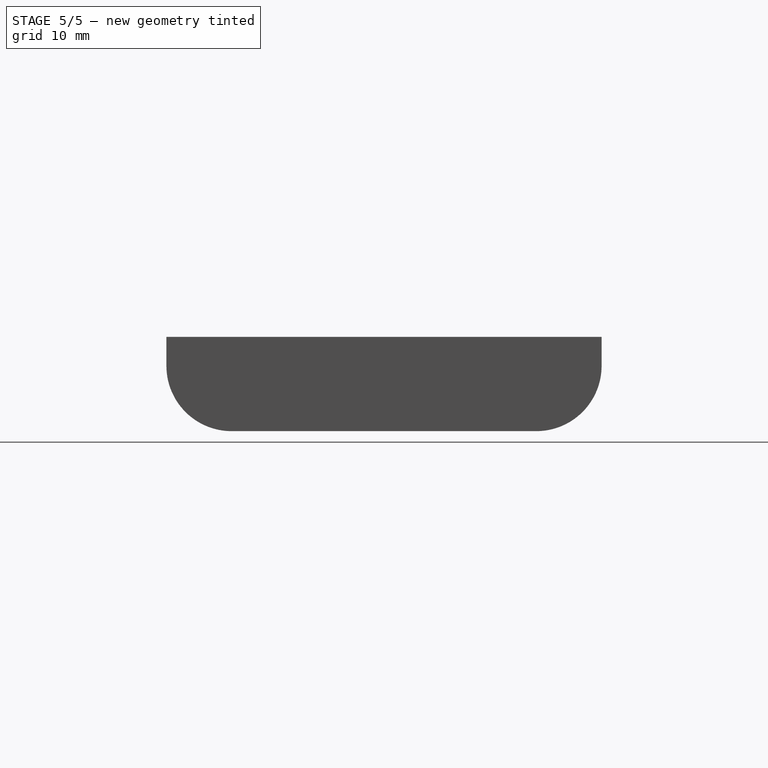
[diagram: stage 5 of 5 — right view after this stage's code; geometry added in this stage tinted green]
FEATURE [Sketcher::SketchObject] Sketch014
  ExternalGeometry = -> [Pocket011]
  FullyConstrained = true
  MapMode = 5
  Placement = pos=(5.6e-15,-2.2e-15,-10) rot=(0,0,-1;1.5708rad)
  Support = -> [Pocket011]
  sketch-geometry (4):
    g0: LineSegment StartX=-30.58 StartY=48.1 StartZ=0 EndX=-46.58 EndY=48.1 EndZ=0
    g1: LineSegment StartX=-46.58 StartY=48.1 StartZ=0 EndX=-46.58 EndY=46.1 EndZ=0
    g2: LineSegment StartX=-46.58 StartY=46.1 StartZ=0 EndX=-30.58 EndY=46.1 EndZ=0
    g3: LineSegment StartX=-30.58 StartY=46.1 StartZ=0 EndX=-30.58 EndY=48.1 EndZ=0
  constraints (12):
    c: Coincident(g0,g1)
    c: Coincident(g1,g2)
    c: Coincident(g2,g3)
    c: Coincident(g3,g0)
    c: Horizontal(g0)
    c: Horizontal(g2)
    c: Vertical(g1)
    c: Vertical(g3)
    c: DistanceY(g2,g-3) = 32
    c: DistanceX(g2,g2) = 16
    c: DistanceY(g3,g3) = 2
    c: DistanceX(g0,g-5) = 2.88
FEATURE [PartDesign::Pocket] Pocket012
  BaseFeature = -> Pocket011
  Direction = (6e-16,-2e-16,-1)
  Length = 5
  Length2 = 5
  Placement = pos=(0,0,0) rot=(0.57735,0.57735,0.57735;2.0944rad)
  Profile = -> Sketch014
  ReferenceAxis = -> Sketch014 [N_Axis]
  Type = 0
FEATURE [PartDesign::Fillet] Fillet
  Base = -> Pocket012 [Edge171,Edge173,Edge176,Edge170]
  BaseFeature = -> Pocket012
  Placement = pos=(0,0,0) rot=(0.57735,0.57735,0.57735;2.0944rad)
  Radius = 0.5
  SupportTransform = false
  UseAllEdges = false
FEATURE [PartDesign::Fillet] Fillet001
  Base = -> Fillet [Edge159,Edge163,Edge160,Edge155]
  BaseFeature = -> Fillet
  Placement = pos=(0,0,0) rot=(0.57735,0.57735,0.57735;2.0944rad)
  Radius = 0.5
  SupportTransform = false
  UseAllEdges = false
FEATURE [PartDesign::Body] Body
  Group = -> [Sketch,Pad,Sketch001,Pocket,Sketch002,Pocket001,Sketch003,Pocket002,Sketch005,Pocket003,Sketch006,Pocket004,Sketch007,Pocket005,Sketch008,Sketch009,Pocket007,Sketch010,Pocket008,Sketch011,Pocket009,Sketch012,Pocket010,Sketch013,Pocket011,Sketch014,Pocket012,Fillet,Fillet001]
  Origin = -> Origin
  Tip = -> Fillet001
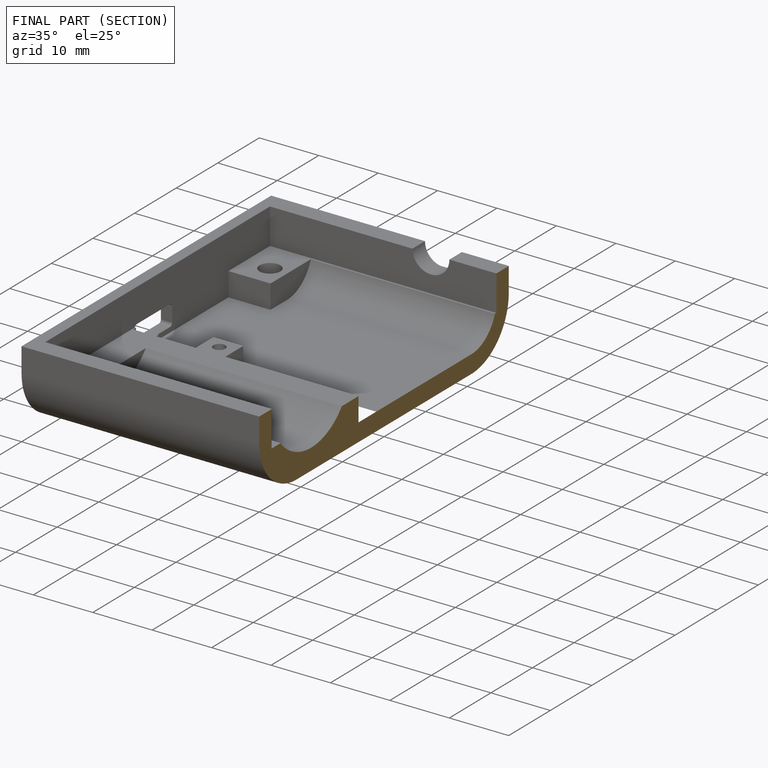
[diagram: finished part — half-section view (interior)]
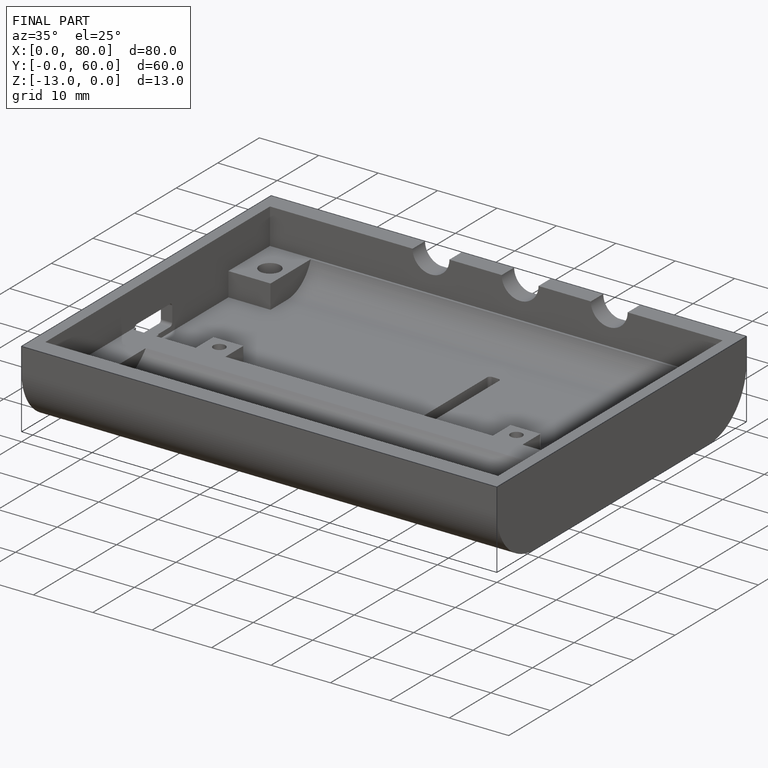
[diagram: finished part — iso view with bounding-box wireframe]
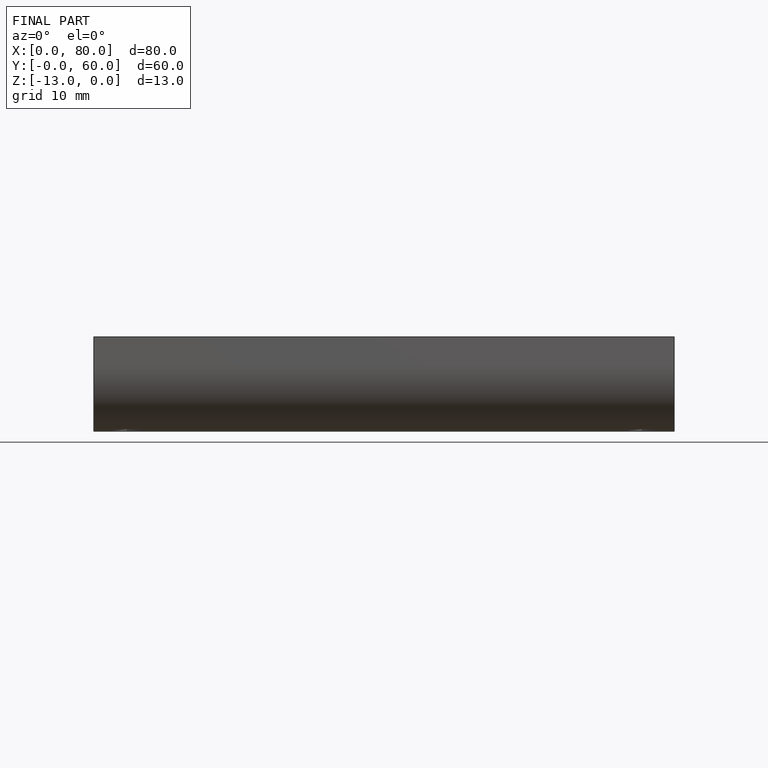
[diagram: finished part — front view with bounding-box wireframe]
